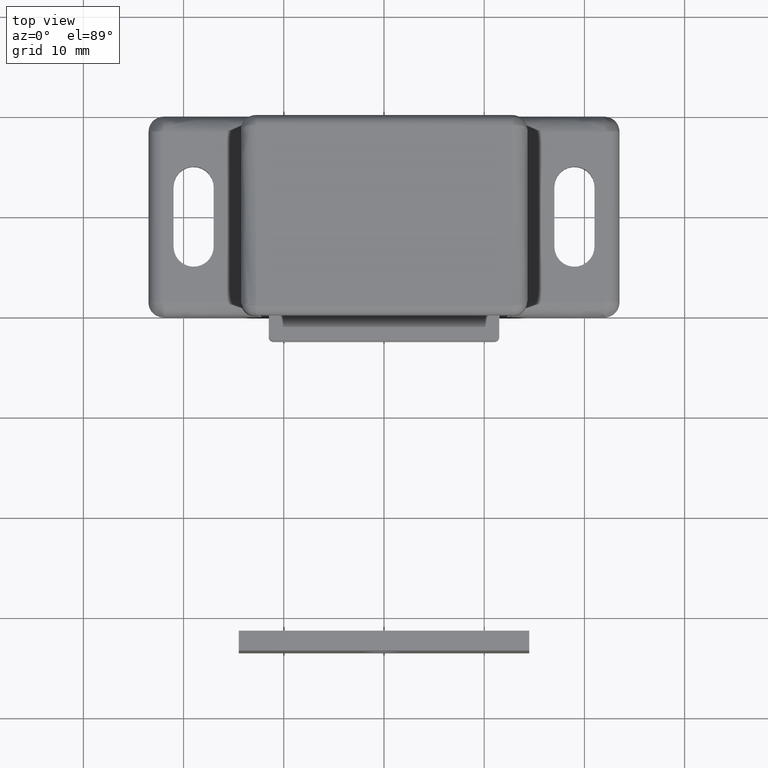
[diagram: clean part render]
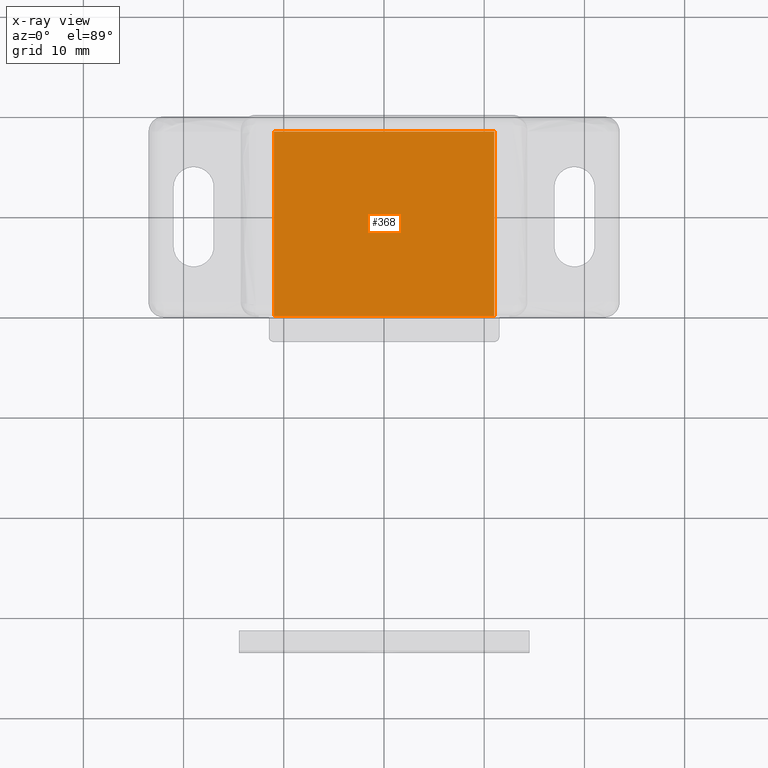
[diagram: x-ray — body ghosted, one internal face saturated and labeled with its STEP entity id]
A machine part, top view, then the same camera in x-ray: the body is ghosted and one INTERNAL B-rep face — a face not visible from any outside direction — is saturated and labeled: STEP entity #368.
In plain terms, the highlighted face is a freeform B-spline surface patch.
Its self-contained STEP definition (entity closure, byte-faithful):
#252=CARTESIAN_POINT('',(-11.0,-20.0,8.900009000000001));
#253=VERTEX_POINT('',#252);
#266=CARTESIAN_POINT('',(11.0,-20.0,8.900009000000001));
#267=VERTEX_POINT('',#266);
#273=CARTESIAN_POINT('',(-11.0,-20.0,8.900009000000001));
#274=CARTESIAN_POINT('',(11.0,-20.0,8.900009000000001));
#275=QUASI_UNIFORM_CURVE('',1,(#273,#274),.UNSPECIFIED.,.F.,.U.);
#276=EDGE_CURVE('',#253,#267,#275,.T.);
#288=CARTESIAN_POINT('',(-11.0,-1.599998000000000,8.900009000000001));
#289=VERTEX_POINT('',#288);
#295=CARTESIAN_POINT('',(11.0,-1.599998000000000,8.900009000000001));
#296=VERTEX_POINT('',#295);
#297=CARTESIAN_POINT('',(-11.0,-1.599998000000000,8.900009000000001));
#298=CARTESIAN_POINT('',(11.0,-1.599998000000000,8.900009000000001));
#299=QUASI_UNIFORM_CURVE('',1,(#297,#298),.UNSPECIFIED.,.F.,.U.);
#300=EDGE_CURVE('',#289,#296,#299,.T.);
#345=CARTESIAN_POINT('',(11.0,-1.599998000000000,8.900009000000001));
#346=CARTESIAN_POINT('',(11.0,-20.0,8.900009000000001));
#347=QUASI_UNIFORM_CURVE('',1,(#345,#346),.UNSPECIFIED.,.F.,.U.);
#348=EDGE_CURVE('',#296,#267,#347,.T.);
#353=CARTESIAN_POINT('',(12.098899957359730,-20.919080064237232,8.900009000000001));
#354=CARTESIAN_POINT('',(-12.098900547445711,-20.919080064237232,8.900009000000001));
#355=CARTESIAN_POINT('',(12.098899957359730,-0.680917442236264,8.900009000000001));
#356=CARTESIAN_POINT('',(-12.098900547445711,-0.680917442236264,8.900009000000001));
#357=B_SPLINE_SURFACE_WITH_KNOTS('',1,1,((#353,#355),(#354,#356)),.UNSPECIFIED.,.F.,.F.,.U.,(2,2),(2,2),(0.0,24.197800504805439),(0.0,20.238162622000960),.UNSPECIFIED.);
#358=ORIENTED_EDGE('',*,*,#276,.T.);
#359=ORIENTED_EDGE('',*,*,#348,.F.);
#360=ORIENTED_EDGE('',*,*,#300,.F.);
#361=CARTESIAN_POINT('',(-11.0,-1.599998000000000,8.900009000000001));
#362=CARTESIAN_POINT('',(-11.0,-20.0,8.900009000000001));
#363=QUASI_UNIFORM_CURVE('',1,(#361,#362),.UNSPECIFIED.,.F.,.U.);
#364=EDGE_CURVE('',#289,#253,#363,.T.);
#365=ORIENTED_EDGE('',*,*,#364,.T.);
#366=EDGE_LOOP('',(#358,#359,#360,#365));
#367=FACE_OUTER_BOUND('',#366,.T.);
#368=ADVANCED_FACE('',(#367),#357,.F.);